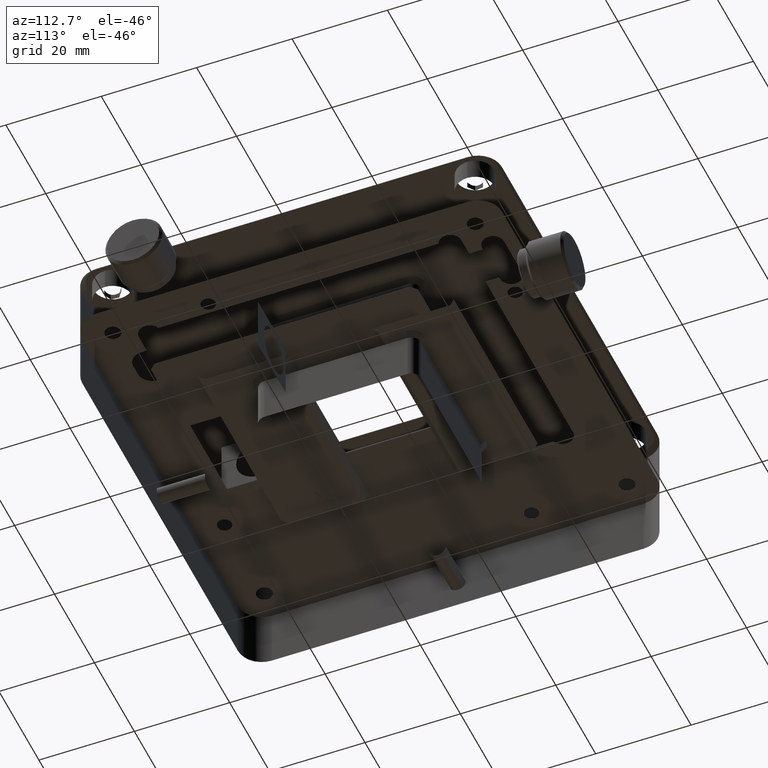
[diagram: clean part render]
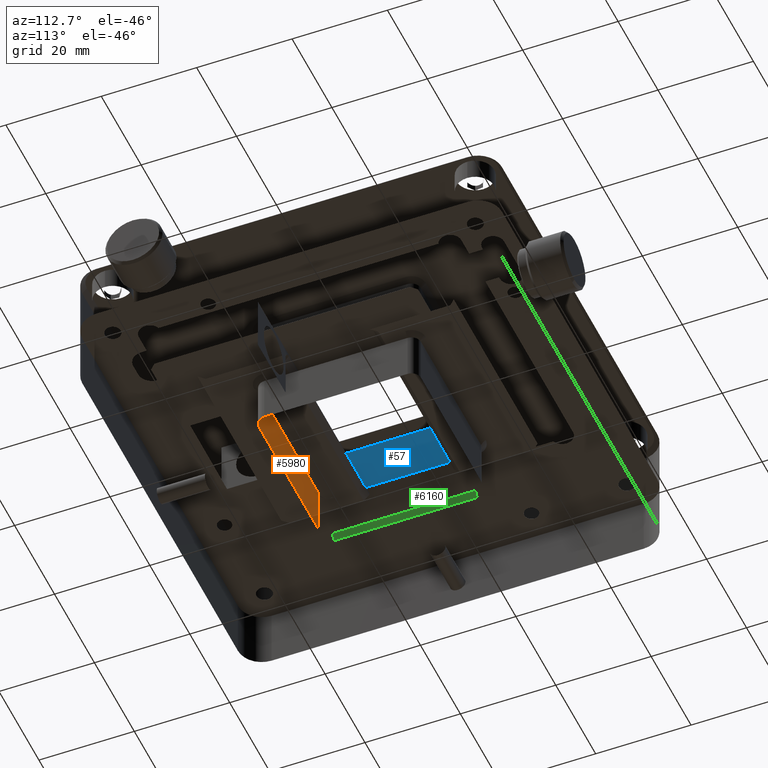
[diagram: same view with three faces highlighted in distinct colors, each labeled with its STEP entity id]
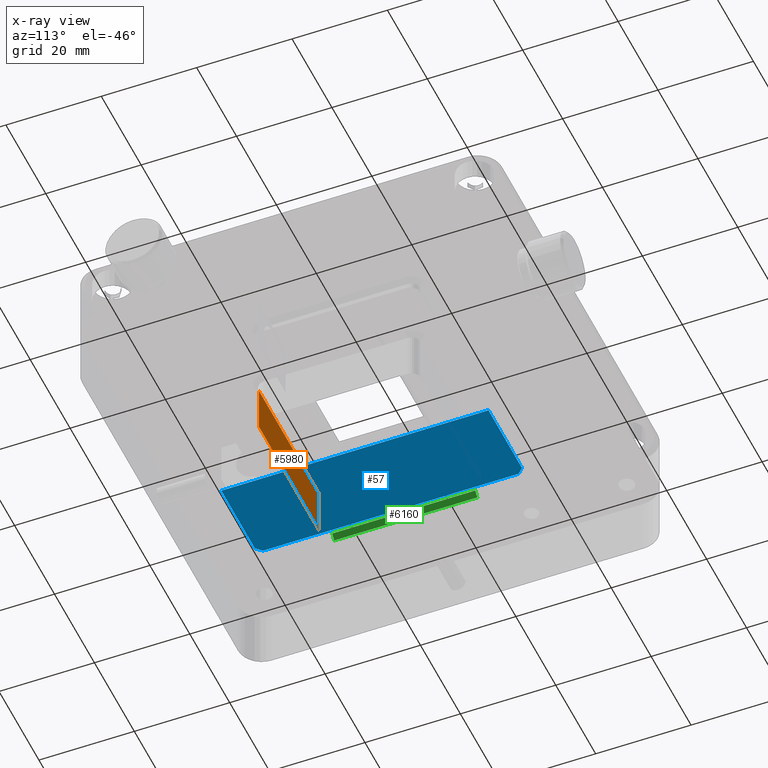
[diagram: x-ray of the same camera — body ghosted, the three highlighted faces saturated]
A machine part, auxiliary view with three faces highlighted in distinct colors.
The next image is the same camera in x-ray (body ghosted, the three faces saturated) — at least one of them is partly hidden behind the body in this view.
Their STEP definitions:

[orange] entity #5980 — the highlighted planar face has unit normal (-0, 1, 0).
#160 = ORIENTED_EDGE ( 'NONE', *, *, #6685, .F. ) ;
#386 = ORIENTED_EDGE ( 'NONE', *, *, #4682, .T. ) ;
#433 = PLANE ( 'NONE',  #1545 ) ;
#454 = DIRECTION ( 'NONE',  ( -0.000000000000000000, -0.000000000000000000, -1.000000000000000000 ) ) ;
#614 = VERTEX_POINT ( 'NONE', #2026 ) ;
#818 = DIRECTION ( 'NONE',  ( 1.000000000000000000, 1.020425574104004246E-16, -0.000000000000000000 ) ) ;
#905 = DIRECTION ( 'NONE',  ( -1.000000000000000000, -1.020425574104004246E-16, 0.000000000000000000 ) ) ;
#1493 = VECTOR ( 'NONE', #3653, 1000.000000000000000 ) ;
#1495 = ORIENTED_EDGE ( 'NONE', *, *, #4222, .F. ) ;
#1545 = AXIS2_PLACEMENT_3D ( 'NONE', #2005, #5861, #905 ) ;
#2005 = CARTESIAN_POINT ( 'NONE',  ( 105.5087469373111873, 12.67999999999999972, 8.674000000000001265 ) ) ;
#2007 = LINE ( 'NONE', #6358, #1493 ) ;
#2026 = CARTESIAN_POINT ( 'NONE',  ( 103.5087469373111873, 12.68000000002565386, 6.173999999982600073 ) ) ;
#2564 = ORIENTED_EDGE ( 'NONE', *, *, #3190, .F. ) ;
#3190 = EDGE_CURVE ( 'NONE', #6701, #6799, #4146, .T. ) ;
#3230 = CARTESIAN_POINT ( 'NONE',  ( 73.50874693731118725, 12.68000000002565031, 6.173999999982600073 ) ) ;
#3653 = DIRECTION ( 'NONE',  ( 1.000000000000000000, 5.102127870520011984E-17, -5.102127870520021228E-17 ) ) ;
#3875 = CARTESIAN_POINT ( 'NONE',  ( 73.50874693731118725, 12.68000000003785566, -3.825999999938795693 ) ) ;
#4059 = CARTESIAN_POINT ( 'NONE',  ( 105.5087469373111873, 12.67999999999999972, 6.173999999999999488 ) ) ;
#4146 = LINE ( 'NONE', #5353, #6824 ) ;
#4222 = EDGE_CURVE ( 'NONE', #6799, #614, #6761, .T. ) ;
#4296 = LINE ( 'NONE', #4916, #6630 ) ;
#4682 = EDGE_CURVE ( 'NONE', #6701, #5387, #2007, .T. ) ;
#4791 = VECTOR ( 'NONE', #818, 1000.000000000000000 ) ;
#4803 = EDGE_LOOP ( 'NONE', ( #2564, #386, #160, #1495 ) ) ;
#4822 = DIRECTION ( 'NONE',  ( 0.000000000000000000, 0.000000000000000000, 1.000000000000000000 ) ) ;
#4916 = CARTESIAN_POINT ( 'NONE',  ( 103.5087469373111873, 12.67999999999999972, 8.674000000000001265 ) ) ;
#5353 = CARTESIAN_POINT ( 'NONE',  ( 73.50874693731118725, 12.67999999999999794, 8.674000000000001265 ) ) ;
#5387 = VERTEX_POINT ( 'NONE', #7055 ) ;
#5861 = DIRECTION ( 'NONE',  ( -1.020425574104004246E-16, 1.000000000000000000, 0.000000000000000000 ) ) ;
#5980 = ADVANCED_FACE ( 'NONE', ( #6994 ), #433, .F. ) ;
#6358 = CARTESIAN_POINT ( 'NONE',  ( 88.50874693731117304, 12.67999999999999616, -3.825999999999999623 ) ) ;
#6630 = VECTOR ( 'NONE', #454, 1000.000000000000000 ) ;
#6685 = EDGE_CURVE ( 'NONE', #614, #5387, #4296, .T. ) ;
#6701 = VERTEX_POINT ( 'NONE', #3875 ) ;
#6761 = LINE ( 'NONE', #4059, #4791 ) ;
#6799 = VERTEX_POINT ( 'NONE', #3230 ) ;
#6824 = VECTOR ( 'NONE', #4822, 1000.000000000000000 ) ;
#6994 = FACE_OUTER_BOUND ( 'NONE', #4803, .T. ) ;
#7055 = CARTESIAN_POINT ( 'NONE',  ( 103.5087469373111873, 12.68000000001220329, -3.825999999986704037 ) ) ;

[blue] entity #57 — the highlighted planar face has unit normal (0, 0, -1).
#57 = ADVANCED_FACE ( 'NONE', ( #5590 ), #3885, .T. ) ;
#314 = LINE ( 'NONE', #5171, #843 ) ;
#381 = VERTEX_POINT ( 'NONE', #4693 ) ;
#544 = ORIENTED_EDGE ( 'NONE', *, *, #7058, .T. ) ;
#594 = LINE ( 'NONE', #3734, #2658 ) ;
#843 = VECTOR ( 'NONE', #2559, 1000.000000000000000 ) ;
#880 = ORIENTED_EDGE ( 'NONE', *, *, #3631, .T. ) ;
#1058 = DIRECTION ( 'NONE',  ( 0.7071067811865414665, 0.7071067811865536790, 0.000000000000000000 ) ) ;
#1168 = DIRECTION ( 'NONE',  ( 0.000000000000000000, 0.000000000000000000, -1.000000000000000000 ) ) ;
#1219 = AXIS2_PLACEMENT_3D ( 'NONE', #2348, #1168, #2882 ) ;
#1435 = VERTEX_POINT ( 'NONE', #4951 ) ;
#1445 = CARTESIAN_POINT ( 'NONE',  ( 70.27361420087531485, -5.319999999999991402, 8.673999999999997712 ) ) ;
#1470 = CARTESIAN_POINT ( 'NONE',  ( 61.27361420087532196, 49.47999999999999687, 8.673999999999997712 ) ) ;
#1656 = DIRECTION ( 'NONE',  ( 0.000000000000000000, 1.000000000000000000, 0.000000000000000000 ) ) ;
#1678 = ORIENTED_EDGE ( 'NONE', *, *, #2667, .T. ) ;
#2012 = DIRECTION ( 'NONE',  ( -1.000000000000000000, 0.000000000000000000, -0.000000000000000000 ) ) ;
#2348 = CARTESIAN_POINT ( 'NONE',  ( 70.27361420087531485, 22.68000000000000682, 8.673999999999997712 ) ) ;
#2370 = EDGE_LOOP ( 'NONE', ( #880, #6631, #544, #6071, #1678, #3240 ) ) ;
#2484 = LINE ( 'NONE', #1445, #5160 ) ;
#2549 = DIRECTION ( 'NONE',  ( 1.000000000000000000, -0.000000000000000000, 0.000000000000000000 ) ) ;
#2559 = DIRECTION ( 'NONE',  ( -0.7071067811865495711, 0.7071067811865454633, 0.000000000000000000 ) ) ;
#2606 = LINE ( 'NONE', #3614, #6205 ) ;
#2658 = VECTOR ( 'NONE', #1058, 1000.000000000000000 ) ;
#2667 = EDGE_CURVE ( 'NONE', #6634, #4974, #4429, .T. ) ;
#2882 = DIRECTION ( 'NONE',  ( -1.000000000000000000, 0.000000000000000000, -0.000000000000000000 ) ) ;
#3073 = VECTOR ( 'NONE', #1656, 1000.000000000000000 ) ;
#3240 = ORIENTED_EDGE ( 'NONE', *, *, #6778, .T. ) ;
#3614 = CARTESIAN_POINT ( 'NONE',  ( 79.27361420087534327, 22.68000000000000682, 8.673999999999997712 ) ) ;
#3631 = EDGE_CURVE ( 'NONE', #381, #1435, #5936, .T. ) ;
#3734 = CARTESIAN_POINT ( 'NONE',  ( 61.27361420087532196, 49.47999999999999687, 8.673999999999997712 ) ) ;
#3885 = PLANE ( 'NONE',  #1219 ) ;
#3893 = CARTESIAN_POINT ( 'NONE',  ( 62.47361420087531059, -5.319999999999990514, 8.673999999999997712 ) ) ;
#4429 = LINE ( 'NONE', #6609, #3073 ) ;
#4693 = CARTESIAN_POINT ( 'NONE',  ( 62.47361420087530348, 50.67999999999999972, 8.673999999999997712 ) ) ;
#4787 = DIRECTION ( 'NONE',  ( -0.000000000000000000, -1.000000000000000000, -0.000000000000000000 ) ) ;
#4909 = EDGE_CURVE ( 'NONE', #1435, #6171, #2606, .T. ) ;
#4951 = CARTESIAN_POINT ( 'NONE',  ( 79.27361420087534327, 50.67999999999999972, 8.673999999999997712 ) ) ;
#4974 = VERTEX_POINT ( 'NONE', #1470 ) ;
#5160 = VECTOR ( 'NONE', #2012, 1000.000000000000000 ) ;
#5171 = CARTESIAN_POINT ( 'NONE',  ( 62.47361420087531059, -5.319999999999987850, 8.673999999999997712 ) ) ;
#5590 = FACE_OUTER_BOUND ( 'NONE', #2370, .T. ) ;
#5819 = VECTOR ( 'NONE', #2549, 1000.000000000000000 ) ;
#5936 = LINE ( 'NONE', #6467, #5819 ) ;
#6058 = CARTESIAN_POINT ( 'NONE',  ( 79.27361420087534327, -5.319999999999991402, 8.673999999999997712 ) ) ;
#6071 = ORIENTED_EDGE ( 'NONE', *, *, #6629, .T. ) ;
#6171 = VERTEX_POINT ( 'NONE', #6058 ) ;
#6205 = VECTOR ( 'NONE', #4787, 1000.000000000000000 ) ;
#6219 = VERTEX_POINT ( 'NONE', #3893 ) ;
#6409 = CARTESIAN_POINT ( 'NONE',  ( 61.27361420087531485, -4.119999999999997442, 8.673999999999997712 ) ) ;
#6467 = CARTESIAN_POINT ( 'NONE',  ( 70.27361420087531485, 50.67999999999999972, 8.673999999999997712 ) ) ;
#6609 = CARTESIAN_POINT ( 'NONE',  ( 61.27361420087531485, 22.68000000000000682, 8.673999999999997712 ) ) ;
#6629 = EDGE_CURVE ( 'NONE', #6219, #6634, #314, .T. ) ;
#6631 = ORIENTED_EDGE ( 'NONE', *, *, #4909, .T. ) ;
#6634 = VERTEX_POINT ( 'NONE', #6409 ) ;
#6778 = EDGE_CURVE ( 'NONE', #4974, #381, #594, .T. ) ;
#7058 = EDGE_CURVE ( 'NONE', #6171, #6219, #2484, .T. ) ;

[green] entity #6160 — the highlighted planar face has unit normal (0.7071, 0, -0.7071).
#39 = ORIENTED_EDGE ( 'NONE', *, *, #5363, .F. ) ;
#140 = VECTOR ( 'NONE', #3480, 1000.000000000000114 ) ;
#222 = CARTESIAN_POINT ( 'NONE',  ( 70.50874693731118725, 14.67999999999999794, -4.826000000000002288 ) ) ;
#239 = LINE ( 'NONE', #1302, #140 ) ;
#328 = VECTOR ( 'NONE', #3009, 999.9999999999998863 ) ;
#461 = DIRECTION ( 'NONE',  ( 0.000000000000000000, 1.000000000000000000, -0.000000000000000000 ) ) ;
#471 = CARTESIAN_POINT ( 'NONE',  ( 71.50874693732339438, 14.67999999999999794, -3.825999999986705369 ) ) ;
#539 = CARTESIAN_POINT ( 'NONE',  ( 70.50874693731118725, 29.68000000000000327, -4.825999999999999623 ) ) ;
#935 = EDGE_CURVE ( 'NONE', #6032, #5691, #5110, .T. ) ;
#1172 = VERTEX_POINT ( 'NONE', #4855 ) ;
#1302 = CARTESIAN_POINT ( 'NONE',  ( -498881.8112530626822, 44.67999999990833970, -498957.1459999999497 ) ) ;
#1762 = DIRECTION ( 'NONE',  ( 1.530638361156003534E-16, -1.000000000000000000, -1.530638361156006245E-16 ) ) ;
#1779 = VERTEX_POINT ( 'NONE', #6867 ) ;
#1994 = VECTOR ( 'NONE', #461, 1000.000000000000000 ) ;
#2146 = ORIENTED_EDGE ( 'NONE', *, *, #4079, .F. ) ;
#3009 = DIRECTION ( 'NONE',  ( -0.7071067811865482389, 0.000000000000000000, -0.7071067811865469066 ) ) ;
#3207 = CARTESIAN_POINT ( 'NONE',  ( 70.50874693731118725, 29.68000000000000682, -4.825999999999999623 ) ) ;
#3396 = CARTESIAN_POINT ( 'NONE',  ( 70.50874693732041010, 14.67999999999999794, -4.825999999990769673 ) ) ;
#3405 = EDGE_LOOP ( 'NONE', ( #4862, #39, #4400, #2146 ) ) ;
#3480 = DIRECTION ( 'NONE',  ( 0.7071067811865474617, 1.298934084353239805E-16, 0.7071067811865474617 ) ) ;
#3824 = DIRECTION ( 'NONE',  ( -0.7071067811865482389, 0.000000000000000000, -0.7071067811865469066 ) ) ;
#4079 = EDGE_CURVE ( 'NONE', #1779, #6032, #6649, .T. ) ;
#4384 = AXIS2_PLACEMENT_3D ( 'NONE', #539, #5459, #3824 ) ;
#4400 = ORIENTED_EDGE ( 'NONE', *, *, #935, .F. ) ;
#4454 = PLANE ( 'NONE',  #4384 ) ;
#4855 = CARTESIAN_POINT ( 'NONE',  ( 70.50874693734914445, 44.67999999999999972, -4.825999999942571783 ) ) ;
#4862 = ORIENTED_EDGE ( 'NONE', *, *, #6846, .F. ) ;
#4984 = CARTESIAN_POINT ( 'NONE',  ( 71.50874693731118725, 29.68000000000000327, -3.825999999999998735 ) ) ;
#5110 = LINE ( 'NONE', #222, #328 ) ;
#5363 = EDGE_CURVE ( 'NONE', #5691, #1172, #5886, .T. ) ;
#5459 = DIRECTION ( 'NONE',  ( 0.7071067811865469066, 2.164649529435349897E-16, -0.7071067811865482389 ) ) ;
#5691 = VERTEX_POINT ( 'NONE', #3396 ) ;
#5886 = LINE ( 'NONE', #3207, #1994 ) ;
#5928 = FACE_OUTER_BOUND ( 'NONE', #3405, .T. ) ;
#6032 = VERTEX_POINT ( 'NONE', #471 ) ;
#6151 = VECTOR ( 'NONE', #1762, 1000.000000000000000 ) ;
#6160 = ADVANCED_FACE ( 'NONE', ( #5928 ), #4454, .F. ) ;
#6649 = LINE ( 'NONE', #4984, #6151 ) ;
#6846 = EDGE_CURVE ( 'NONE', #1172, #1779, #239, .T. ) ;
#6867 = CARTESIAN_POINT ( 'NONE',  ( 71.50874693732677656, 44.67999999999999972, -3.825999999973407117 ) ) ;